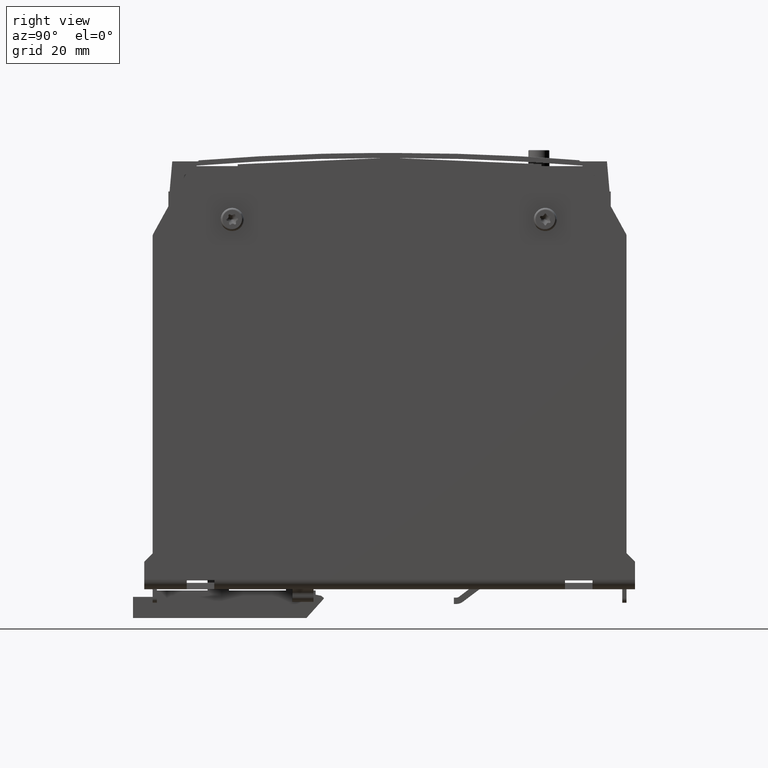
[diagram: clean part render]
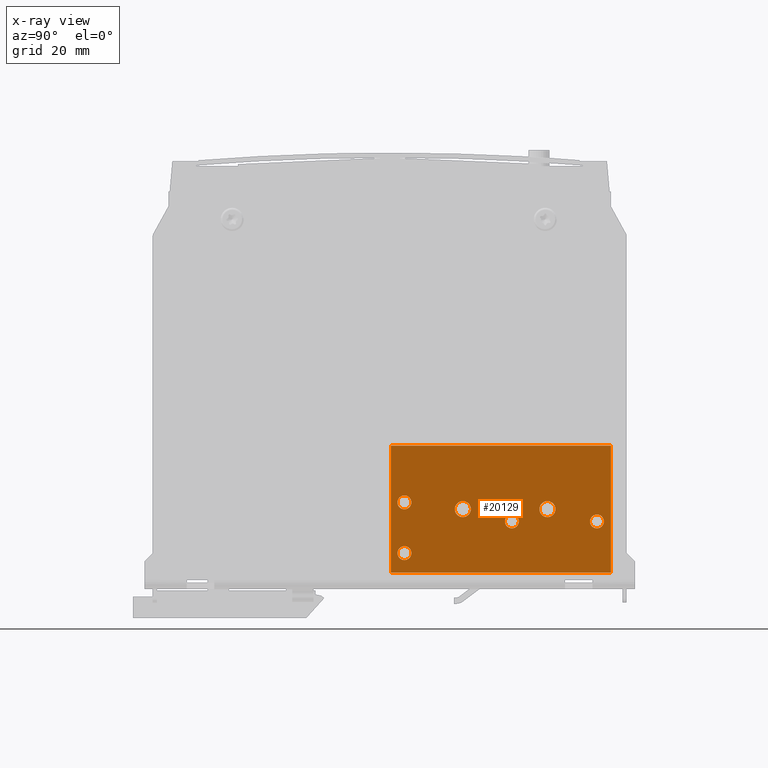
[diagram: x-ray — body ghosted, one internal face saturated and labeled with its STEP entity id]
A machine part, right view, then the same camera in x-ray: the body is ghosted and one INTERNAL B-rep face — a face not visible from any outside direction — is saturated and labeled: STEP entity #20129.
In plain terms, the highlighted planar face has unit normal (1, 0, 0).
Its self-contained STEP definition (entity closure, byte-faithful):
#20020=CARTESIAN_POINT('',(-0.787401574803145,0.137795275590563,0.399606299212604));
#20021=VERTEX_POINT('',#20020);
#20022=CARTESIAN_POINT('',(-0.787401574803145,0.137795275590563,0.334645669291345));
#20023=DIRECTION('',(1.0,0.0,0.0));
#20024=DIRECTION('',(0.0,0.0,-1.0));
#20025=AXIS2_PLACEMENT_3D('',#20022,#20023,#20024);
#20026=CIRCLE('',#20025,0.06496062992126);
#20027=EDGE_CURVE('',#20021,#20021,#20026,.T.);
#20032=CARTESIAN_POINT('',(-0.787401574803145,1.035433070866154,0.744094488188982));
#20033=DIRECTION('',(1.0,0.0,0.0));
#20034=DIRECTION('',(0.0,0.0,1.0));
#20035=AXIS2_PLACEMENT_3D('',#20032,#20033,#20034);
#20036=PLANE('',#20035);
#20037=CARTESIAN_POINT('',(-0.787401574803145,2.059055118110249,0.15354330708662));
#20038=VERTEX_POINT('',#20037);
#20039=CARTESIAN_POINT('',(-0.787401574803145,0.011811023622059,0.15354330708662));
#20040=VERTEX_POINT('',#20039);
#20041=CARTESIAN_POINT('',(-0.787401574803145,2.059055118110249,0.15354330708662));
#20042=DIRECTION('',(0.0,-1.0,0.0));
#20043=VECTOR('',#20042,2.047244094488189);
#20044=LINE('',#20041,#20043);
#20045=EDGE_CURVE('',#20038,#20040,#20044,.T.);
#20046=ORIENTED_EDGE('',*,*,#20045,.F.);
#20047=CARTESIAN_POINT('',(-0.787401574803145,2.059055118110249,1.334645669291345));
#20048=VERTEX_POINT('',#20047);
#20049=CARTESIAN_POINT('',(-0.787401574803145,2.059055118110249,1.334645669291345));
#20050=DIRECTION('',(0.0,0.0,-1.0));
#20051=VECTOR('',#20050,1.181102362204725);
#20052=LINE('',#20049,#20051);
#20053=EDGE_CURVE('',#20048,#20038,#20052,.T.);
#20054=ORIENTED_EDGE('',*,*,#20053,.F.);
#20055=CARTESIAN_POINT('',(-0.787401574803145,0.011811023622059,1.334645669291345));
#20056=VERTEX_POINT('',#20055);
#20057=CARTESIAN_POINT('',(-0.787401574803145,0.011811023622059,1.334645669291345));
#20058=DIRECTION('',(0.0,1.0,0.0));
#20059=VECTOR('',#20058,2.047244094488189);
#20060=LINE('',#20057,#20059);
#20061=EDGE_CURVE('',#20056,#20048,#20060,.T.);
#20062=ORIENTED_EDGE('',*,*,#20061,.F.);
#20063=CARTESIAN_POINT('',(-0.787401574803145,0.011811023622059,0.15354330708662));
#20064=DIRECTION('',(0.0,0.0,1.0));
#20065=VECTOR('',#20064,1.181102362204725);
#20066=LINE('',#20063,#20065);
#20067=EDGE_CURVE('',#20040,#20056,#20066,.T.);
#20068=ORIENTED_EDGE('',*,*,#20067,.F.);
#20069=EDGE_LOOP('',(#20046,#20054,#20062,#20068));
#20070=FACE_OUTER_BOUND('',#20069,.T.);
#20071=CARTESIAN_POINT('',(-0.787401574803145,0.137795275590563,0.872047244094494));
#20072=VERTEX_POINT('',#20071);
#20073=CARTESIAN_POINT('',(-0.787401574803145,0.137795275590563,0.807086614173234));
#20074=DIRECTION('',(1.0,0.0,0.0));
#20075=DIRECTION('',(0.0,0.0,-1.0));
#20076=AXIS2_PLACEMENT_3D('',#20073,#20074,#20075);
#20077=CIRCLE('',#20076,0.06496062992126);
#20078=EDGE_CURVE('',#20072,#20072,#20077,.T.);
#20079=ORIENTED_EDGE('',*,*,#20078,.F.);
#20080=EDGE_LOOP('',(#20079));
#20081=FACE_BOUND('',#20080,.T.);
#20082=CARTESIAN_POINT('',(-0.787401574803145,1.468503937007886,0.818897637795282));
#20083=VERTEX_POINT('',#20082);
#20084=CARTESIAN_POINT('',(-0.787401574803145,1.468503937007886,0.744094488188982));
#20085=DIRECTION('',(1.0,0.0,0.0));
#20086=DIRECTION('',(0.0,0.0,-1.0));
#20087=AXIS2_PLACEMENT_3D('',#20084,#20085,#20086);
#20088=CIRCLE('',#20087,0.074803149606299);
#20089=EDGE_CURVE('',#20083,#20083,#20088,.T.);
#20090=ORIENTED_EDGE('',*,*,#20089,.F.);
#20091=EDGE_LOOP('',(#20090));
#20092=FACE_BOUND('',#20091,.T.);
#20093=CARTESIAN_POINT('',(-0.787401574803145,1.929133858267729,0.694881889763786));
#20094=VERTEX_POINT('',#20093);
#20095=CARTESIAN_POINT('',(-0.787401574803145,1.929133858267729,0.629921259842526));
#20096=DIRECTION('',(1.0,0.0,0.0));
#20097=DIRECTION('',(0.0,0.0,-1.0));
#20098=AXIS2_PLACEMENT_3D('',#20095,#20096,#20097);
#20099=CIRCLE('',#20098,0.06496062992126);
#20100=EDGE_CURVE('',#20094,#20094,#20099,.T.);
#20101=ORIENTED_EDGE('',*,*,#20100,.F.);
#20102=EDGE_LOOP('',(#20101));
#20103=FACE_BOUND('',#20102,.T.);
#20104=CARTESIAN_POINT('',(-0.787401574803145,1.137795275590563,0.694881889763786));
#20105=VERTEX_POINT('',#20104);
#20106=CARTESIAN_POINT('',(-0.787401574803145,1.137795275590563,0.629921259842526));
#20107=DIRECTION('',(1.0,0.0,0.0));
#20108=DIRECTION('',(0.0,0.0,-1.0));
#20109=AXIS2_PLACEMENT_3D('',#20106,#20107,#20108);
#20110=CIRCLE('',#20109,0.06496062992126);
#20111=EDGE_CURVE('',#20105,#20105,#20110,.T.);
#20112=ORIENTED_EDGE('',*,*,#20111,.F.);
#20113=EDGE_LOOP('',(#20112));
#20114=FACE_BOUND('',#20113,.T.);
#20115=CARTESIAN_POINT('',(-0.787401574803145,0.681102362204737,0.818897637795282));
#20116=VERTEX_POINT('',#20115);
#20117=CARTESIAN_POINT('',(-0.787401574803145,0.681102362204737,0.744094488188982));
#20118=DIRECTION('',(1.0,0.0,0.0));
#20119=DIRECTION('',(0.0,0.0,-1.0));
#20120=AXIS2_PLACEMENT_3D('',#20117,#20118,#20119);
#20121=CIRCLE('',#20120,0.074803149606299);
#20122=EDGE_CURVE('',#20116,#20116,#20121,.T.);
#20123=ORIENTED_EDGE('',*,*,#20122,.F.);
#20124=EDGE_LOOP('',(#20123));
#20125=FACE_BOUND('',#20124,.T.);
#20126=ORIENTED_EDGE('',*,*,#20027,.F.);
#20127=EDGE_LOOP('',(#20126));
#20128=FACE_BOUND('',#20127,.T.);
#20129=ADVANCED_FACE('',(#20070,#20081,#20092,#20103,#20114,#20125,#20128),#20036,.T.);